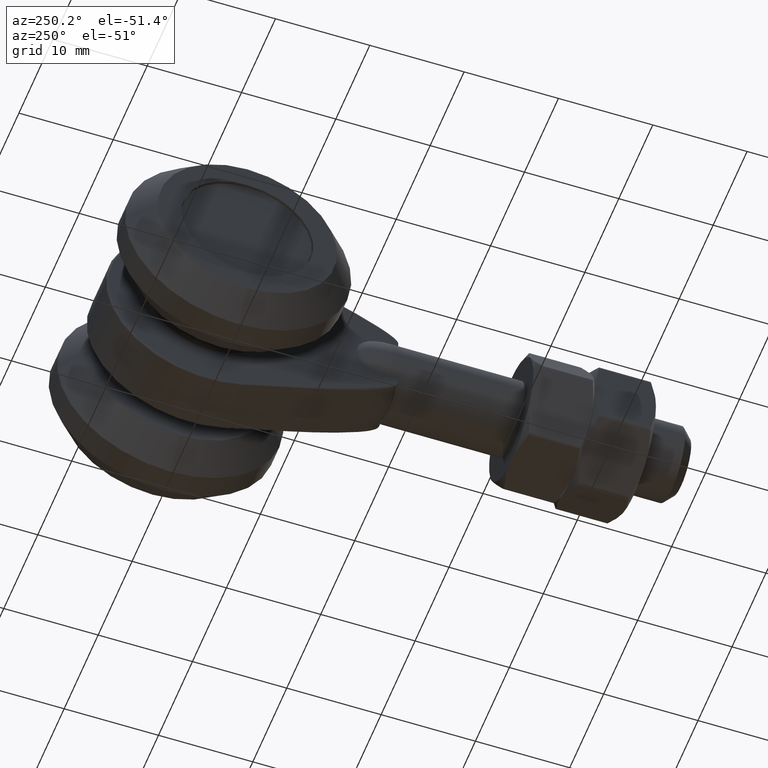
[diagram: clean part render]
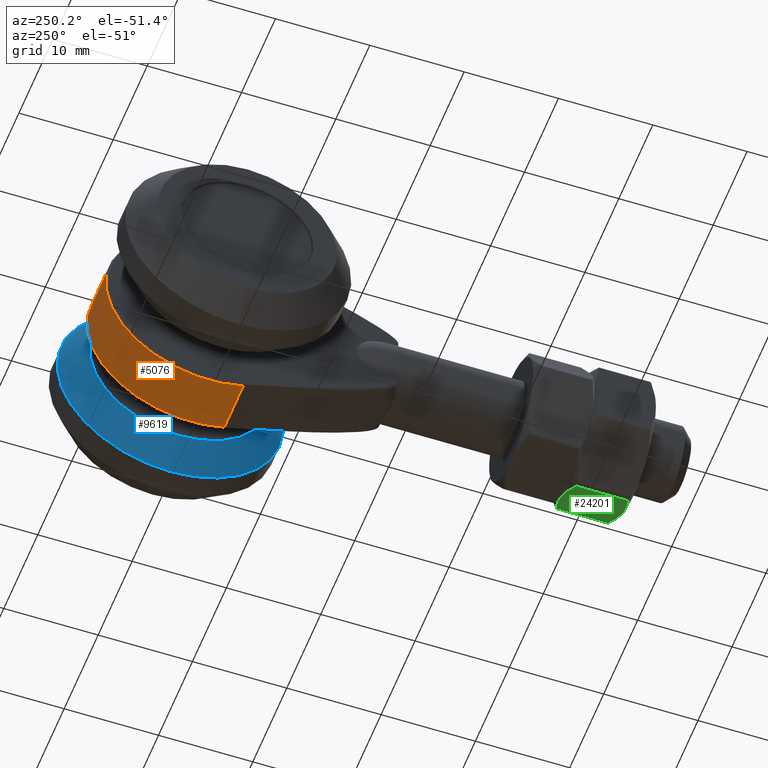
[diagram: same view with three faces highlighted in distinct colors, each labeled with its STEP entity id]
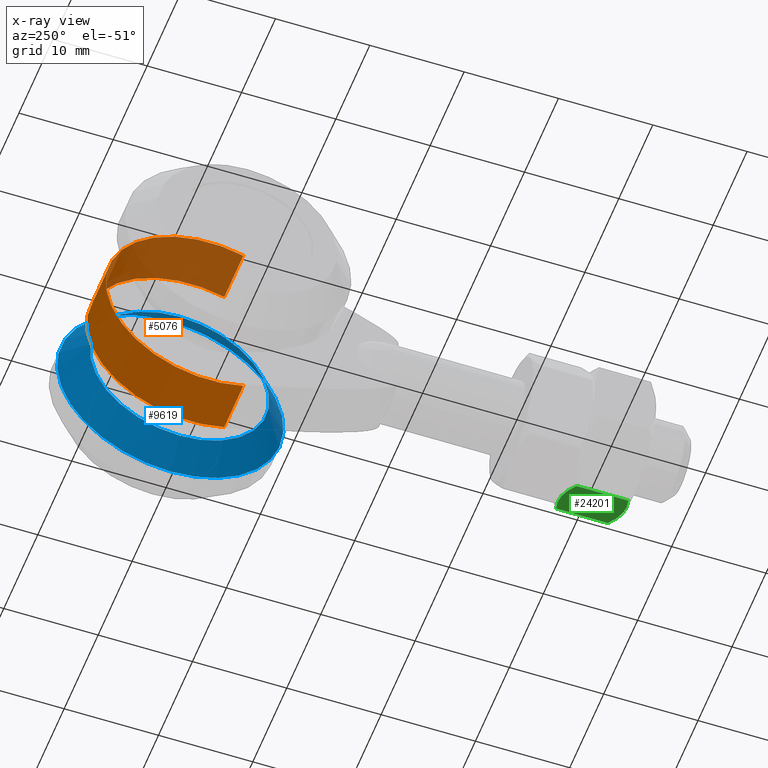
[diagram: x-ray of the same camera — body ghosted, the three highlighted faces saturated]
A machine part, auxiliary view with three faces highlighted in distinct colors.
The next image is the same camera in x-ray (body ghosted, the three faces saturated) — at least one of them is partly hidden behind the body in this view.
Their STEP definitions:

[orange] entity #5076 — the highlighted cylindrical surface (partial cylindrical patch) has radius 11 mm, axis along (-1, -0, -0).
#1078 = LINE ( 'NONE', #7791, #14157 ) ;
#1660 = EDGE_CURVE ( 'NONE', #17442, #22215, #20754, .T. ) ;
#3930 = CARTESIAN_POINT ( 'NONE',  ( -2.799999999999999378, 16.42029344312601324, -10.40123555000429789 ) ) ;
#5076 = ADVANCED_FACE ( 'NONE', ( #11058 ), #8064, .T. ) ;
#7791 = CARTESIAN_POINT ( 'NONE',  ( 3.000000000000000000, 16.42029344312602390, 10.40123555000430855 ) ) ;
#8064 = CYLINDRICAL_SURFACE ( 'NONE', #17099, 11.00000000000000711 ) ;
#9176 = AXIS2_PLACEMENT_3D ( 'NONE', #24706, #11811, #20109 ) ;
#9262 = CARTESIAN_POINT ( 'NONE',  ( 3.000000000000000000, 16.42029344312601324, -10.40123555000429789 ) ) ;
#11058 = FACE_OUTER_BOUND ( 'NONE', #24444, .T. ) ;
#11276 = ORIENTED_EDGE ( 'NONE', *, *, #27821, .T. ) ;
#11811 = DIRECTION ( 'NONE',  ( 1.000000000000000000, 0.000000000000000000, 0.000000000000000000 ) ) ;
#13003 = ORIENTED_EDGE ( 'NONE', *, *, #17133, .F. ) ;
#14157 = VECTOR ( 'NONE', #20474, 1000.000000000000000 ) ;
#14753 = VERTEX_POINT ( 'NONE', #3930 ) ;
#15554 = DIRECTION ( 'NONE',  ( 0.000000000000000000, 0.000000000000000000, 1.000000000000000000 ) ) ;
#16537 = ORIENTED_EDGE ( 'NONE', *, *, #18323, .T. ) ;
#16606 = CARTESIAN_POINT ( 'NONE',  ( 2.799999999999999822, 20.00000000000000355, -8.948584441246368620E-15 ) ) ;
#17099 = AXIS2_PLACEMENT_3D ( 'NONE', #22318, #26300, #15554 ) ;
#17133 = EDGE_CURVE ( 'NONE', #17442, #24518, #1078, .T. ) ;
#17442 = VERTEX_POINT ( 'NONE', #24756 ) ;
#18323 = EDGE_CURVE ( 'NONE', #22215, #14753, #18870, .T. ) ;
#18858 = DIRECTION ( 'NONE',  ( 0.000000000000000000, 0.000000000000000000, -1.000000000000000000 ) ) ;
#18870 = LINE ( 'NONE', #9262, #19870 ) ;
#19870 = VECTOR ( 'NONE', #20338, 1000.000000000000000 ) ;
#20109 = DIRECTION ( 'NONE',  ( 0.000000000000000000, 0.000000000000000000, -1.000000000000000000 ) ) ;
#20338 = DIRECTION ( 'NONE',  ( -1.000000000000000000, -0.000000000000000000, -0.000000000000000000 ) ) ;
#20474 = DIRECTION ( 'NONE',  ( -1.000000000000000000, -0.000000000000000000, -0.000000000000000000 ) ) ;
#20754 = CIRCLE ( 'NONE', #26837, 11.00000000000000711 ) ;
#21151 = CARTESIAN_POINT ( 'NONE',  ( 2.799999999999999822, 16.42029344312601324, -10.40123555000429789 ) ) ;
#22215 = VERTEX_POINT ( 'NONE', #21151 ) ;
#22318 = CARTESIAN_POINT ( 'NONE',  ( 3.000000000000000000, 20.00000000000000355, -8.948584441246368620E-15 ) ) ;
#23940 = CARTESIAN_POINT ( 'NONE',  ( -2.799999999999999378, 16.42029344312602390, 10.40123555000430855 ) ) ;
#24444 = EDGE_LOOP ( 'NONE', ( #13003, #27386, #16537, #11276 ) ) ;
#24518 = VERTEX_POINT ( 'NONE', #23940 ) ;
#24706 = CARTESIAN_POINT ( 'NONE',  ( -2.799999999999999378, 20.00000000000000355, -8.948584441246368620E-15 ) ) ;
#24756 = CARTESIAN_POINT ( 'NONE',  ( 2.799999999999999822, 16.42029344312602390, 10.40123555000430855 ) ) ;
#26022 = CIRCLE ( 'NONE', #9176, 11.00000000000000711 ) ;
#26300 = DIRECTION ( 'NONE',  ( -1.000000000000000000, -0.000000000000000000, -0.000000000000000000 ) ) ;
#26837 = AXIS2_PLACEMENT_3D ( 'NONE', #16606, #27355, #18858 ) ;
#27355 = DIRECTION ( 'NONE',  ( -1.000000000000000000, -0.000000000000000000, -0.000000000000000000 ) ) ;
#27386 = ORIENTED_EDGE ( 'NONE', *, *, #1660, .T. ) ;
#27821 = EDGE_CURVE ( 'NONE', #14753, #24518, #26022, .T. ) ;

[blue] entity #9619 — the highlighted conical surface has half-angle 42.274 deg.
#98 = DIRECTION ( 'NONE',  ( 1.000000000000000000, -0.000000000000000000, -0.000000000000000000 ) ) ;
#182 = FACE_OUTER_BOUND ( 'NONE', #22405, .T. ) ;
#2255 = DIRECTION ( 'NONE',  ( 0.000000000000000000, 0.000000000000000000, -1.000000000000000000 ) ) ;
#4460 = VERTEX_POINT ( 'NONE', #23102 ) ;
#5230 = CONICAL_SURFACE ( 'NONE', #20370, 11.99999999999999645, 0.7378150601204660486 ) ;
#5914 = FACE_BOUND ( 'NONE', #19713, .T. ) ;
#8212 = ORIENTED_EDGE ( 'NONE', *, *, #21008, .T. ) ;
#9619 = ADVANCED_FACE ( 'NONE', ( #5914, #182 ), #5230, .T. ) ;
#12960 = ORIENTED_EDGE ( 'NONE', *, *, #21123, .F. ) ;
#15757 = CIRCLE ( 'NONE', #22350, 11.99999999999999645 ) ;
#18983 = CARTESIAN_POINT ( 'NONE',  ( 6.000000000000000888, 20.00000000000000355, 0.000000000000000000 ) ) ;
#19081 = DIRECTION ( 'NONE',  ( 1.000000000000000000, -0.000000000000000000, -0.000000000000000000 ) ) ;
#19352 = DIRECTION ( 'NONE',  ( 0.000000000000000000, 0.000000000000000000, -1.000000000000000000 ) ) ;
#19482 = AXIS2_PLACEMENT_3D ( 'NONE', #18983, #19081, #23033 ) ;
#19713 = EDGE_LOOP ( 'NONE', ( #8212 ) ) ;
#20370 = AXIS2_PLACEMENT_3D ( 'NONE', #27638, #20859, #19352 ) ;
#20859 = DIRECTION ( 'NONE',  ( 1.000000000000000000, -0.000000000000000000, -0.000000000000000000 ) ) ;
#21008 = EDGE_CURVE ( 'NONE', #4460, #4460, #24900, .T. ) ;
#21123 = EDGE_CURVE ( 'NONE', #26955, #26955, #15757, .T. ) ;
#21594 = CARTESIAN_POINT ( 'NONE',  ( 8.749999999999998224, 20.00000000000000355, -11.99999999999999645 ) ) ;
#22350 = AXIS2_PLACEMENT_3D ( 'NONE', #24253, #98, #2255 ) ;
#22405 = EDGE_LOOP ( 'NONE', ( #12960 ) ) ;
#23033 = DIRECTION ( 'NONE',  ( 0.000000000000000000, 0.000000000000000000, -1.000000000000000000 ) ) ;
#23102 = CARTESIAN_POINT ( 'NONE',  ( 6.000000000000000888, 20.00000000000000355, -9.499999999999994671 ) ) ;
#24253 = CARTESIAN_POINT ( 'NONE',  ( 8.749999999999998224, 20.00000000000000355, 0.000000000000000000 ) ) ;
#24900 = CIRCLE ( 'NONE', #19482, 9.499999999999994671 ) ;
#26955 = VERTEX_POINT ( 'NONE', #21594 ) ;
#27638 = CARTESIAN_POINT ( 'NONE',  ( 8.749999999999998224, 20.00000000000000355, 0.000000000000000000 ) ) ;

[green] entity #24201 — the highlighted planar face has unit normal (-0.5, 0, 0.866).
#266 = CARTESIAN_POINT ( 'NONE',  ( 2.902884496152197791, -2.902718077616393000, 6.499999999999998224 ) ) ;
#724 = EDGE_CURVE ( 'NONE', #6427, #5032, #23557, .T. ) ;
#1257 = DIRECTION ( 'NONE',  ( -0.000000000000000000, 1.000000000000000000, -0.000000000000000000 ) ) ;
#2506 = CARTESIAN_POINT ( 'NONE',  ( 1.176513073733645998, -3.202698312935164271, 6.499999999999998224 ) ) ;
#2657 = CARTESIAN_POINT ( 'NONE',  ( -0.5843172141143634368, -3.250000000000000444, 6.499999999999998224 ) ) ;
#3019 = CARTESIAN_POINT ( 'NONE',  ( -1.165154007745679232, 3.203824239726178913, 6.499999999999998224 ) ) ;
#5032 = VERTEX_POINT ( 'NONE', #26030 ) ;
#5129 = CARTESIAN_POINT ( 'NONE',  ( 3.464101615137759271, 3.250000000000000000, 6.499999999999998224 ) ) ;
#5513 = VERTEX_POINT ( 'NONE', #6142 ) ;
#6142 = CARTESIAN_POINT ( 'NONE',  ( 0.000000000000000000, 3.250000000000000000, 6.499999999999998224 ) ) ;
#6427 = VERTEX_POINT ( 'NONE', #22182 ) ;
#6897 = CARTESIAN_POINT ( 'NONE',  ( -3.464101615138760693, -2.750326475674608417, 6.499999999999998224 ) ) ;
#7545 = ORIENTED_EDGE ( 'NONE', *, *, #22551, .T. ) ;
#7816 = B_SPLINE_CURVE_WITH_KNOTS ( 'NONE', 3,
 ( #12306, #20795, #7920, #24923, #27109, #10068 ),
 .UNSPECIFIED., .F., .F.,
 ( 4, 2, 4 ),
 ( 0.003050666260287162972, 0.004795283856735839401, 0.006539901453184517564 ),
 .UNSPECIFIED. ) ;
#7920 = CARTESIAN_POINT ( 'NONE',  ( 2.334407987368118942, 3.028397719986344327, 6.499999999999999112 ) ) ;
#8031 = LINE ( 'NONE', #11805, #8363 ) ;
#8363 = VECTOR ( 'NONE', #26884, 1000.000000000000000 ) ;
#8724 = CARTESIAN_POINT ( 'NONE',  ( 0.5843306495695039793, -3.249999999999999556, 6.499999999999998224 ) ) ;
#9137 = CARTESIAN_POINT ( 'NONE',  ( 0.000000000000000000, 3.250000000000000000, 6.499999999999998224 ) ) ;
#9143 = CARTESIAN_POINT ( 'NONE',  ( 3.464101615137759271, 2.750326475674881088, 6.499999999999998224 ) ) ;
#9229 = CARTESIAN_POINT ( 'NONE',  ( -3.752776749732568806, 3.250000000000000000, 6.499999999999998224 ) ) ;
#10068 = CARTESIAN_POINT ( 'NONE',  ( 0.000000000000000000, 3.250000000000000000, 6.499999999999998224 ) ) ;
#10150 = B_SPLINE_CURVE_WITH_KNOTS ( 'NONE', 3,
 ( #9137, #15690, #3019, #11639, #22176, #13423 ),
 .UNSPECIFIED., .F., .F.,
 ( 4, 2, 4 ),
 ( 0.006539901453184517564, 0.008284478935818398102, 0.01002905641845227777 ),
 .UNSPECIFIED. ) ;
#11033 = AXIS2_PLACEMENT_3D ( 'NONE', #9229, #11366, #15687 ) ;
#11205 = EDGE_CURVE ( 'NONE', #5032, #14100, #11214, .T. ) ;
#11214 = LINE ( 'NONE', #5129, #26703 ) ;
#11366 = DIRECTION ( 'NONE',  ( 0.000000000000000000, 0.000000000000000000, -1.000000000000000000 ) ) ;
#11578 = VERTEX_POINT ( 'NONE', #12659 ) ;
#11639 = CARTESIAN_POINT ( 'NONE',  ( -2.320763838972456305, 3.031023087752014344, 6.499999999999996447 ) ) ;
#11805 = CARTESIAN_POINT ( 'NONE',  ( -3.464101615137753942, 3.250000000000000000, 6.499999999999998224 ) ) ;
#12306 = CARTESIAN_POINT ( 'NONE',  ( 3.464101615137759271, 2.750326475674881088, 6.499999999999998224 ) ) ;
#12659 = CARTESIAN_POINT ( 'NONE',  ( -3.464101615138760693, 2.750326475674608417, 6.499999999999998224 ) ) ;
#13007 = EDGE_CURVE ( 'NONE', #5513, #11578, #10150, .T. ) ;
#13281 = CARTESIAN_POINT ( 'NONE',  ( 0.000000000000000000, -3.250000000000000000, 6.499999999999998224 ) ) ;
#13303 = ORIENTED_EDGE ( 'NONE', *, *, #724, .T. ) ;
#13423 = CARTESIAN_POINT ( 'NONE',  ( -3.464101615138760693, 2.750326475674608417, 6.499999999999998224 ) ) ;
#14100 = VERTEX_POINT ( 'NONE', #9143 ) ;
#15687 = DIRECTION ( 'NONE',  ( -1.000000000000000000, 0.000000000000000000, -0.000000000000000000 ) ) ;
#15690 = CARTESIAN_POINT ( 'NONE',  ( -0.5843172141143634368, 3.249999999999999556, 6.499999999999998224 ) ) ;
#15692 = CARTESIAN_POINT ( 'NONE',  ( -2.320763838972455417, -3.031023087752014344, 6.499999999999998224 ) ) ;
#17595 = CARTESIAN_POINT ( 'NONE',  ( -2.898327047151624480, -2.903955596805491979, 6.499999999999998224 ) ) ;
#17734 = FACE_OUTER_BOUND ( 'NONE', #23620, .T. ) ;
#19129 = EDGE_CURVE ( 'NONE', #22774, #6427, #26413, .T. ) ;
#19471 = CARTESIAN_POINT ( 'NONE',  ( -3.464101615138760693, -2.750326475674608417, 6.499999999999998224 ) ) ;
#19938 = CARTESIAN_POINT ( 'NONE',  ( 0.000000000000000000, -3.250000000000000000, 6.499999999999998224 ) ) ;
#20230 = ORIENTED_EDGE ( 'NONE', *, *, #19129, .T. ) ;
#20795 = CARTESIAN_POINT ( 'NONE',  ( 2.902884496152197347, 2.902718077616393444, 6.499999999999998224 ) ) ;
#21895 = CARTESIAN_POINT ( 'NONE',  ( -1.165154007745677456, -3.203824239726178469, 6.499999999999996447 ) ) ;
#22088 = PLANE ( 'NONE',  #11033 ) ;
#22176 = CARTESIAN_POINT ( 'NONE',  ( -2.898327047151625813, 2.903955596805492423, 6.499999999999998224 ) ) ;
#22182 = CARTESIAN_POINT ( 'NONE',  ( 0.000000000000000000, -3.250000000000000000, 6.499999999999998224 ) ) ;
#22551 = EDGE_CURVE ( 'NONE', #11578, #22774, #8031, .T. ) ;
#22774 = VERTEX_POINT ( 'NONE', #19471 ) ;
#22998 = ORIENTED_EDGE ( 'NONE', *, *, #11205, .T. ) ;
#23557 = B_SPLINE_CURVE_WITH_KNOTS ( 'NONE', 3,
 ( #13281, #8724, #2506, #23927, #266, #23658 ),
 .UNSPECIFIED., .F., .F.,
 ( 4, 2, 4 ),
 ( 0.01049192114530182046, 0.01224101035202044066, 0.01399009955873906086 ),
 .UNSPECIFIED. ) ;
#23620 = EDGE_LOOP ( 'NONE', ( #13303, #22998, #25440, #24573, #7545, #20230 ) ) ;
#23658 = CARTESIAN_POINT ( 'NONE',  ( 3.464101615137759271, -2.750326475674881088, 6.499999999999998224 ) ) ;
#23927 = CARTESIAN_POINT ( 'NONE',  ( 2.334407987368120274, -3.028397719986342995, 6.499999999999996447 ) ) ;
#24201 = ADVANCED_FACE ( 'NONE', ( #17734 ), #22088, .F. ) ;
#24573 = ORIENTED_EDGE ( 'NONE', *, *, #13007, .T. ) ;
#24923 = CARTESIAN_POINT ( 'NONE',  ( 1.176513073733644887, 3.202698312935164271, 6.499999999999995559 ) ) ;
#25224 = EDGE_CURVE ( 'NONE', #14100, #5513, #7816, .T. ) ;
#25440 = ORIENTED_EDGE ( 'NONE', *, *, #25224, .T. ) ;
#26030 = CARTESIAN_POINT ( 'NONE',  ( 3.464101615137759271, -2.750326475674881088, 6.499999999999998224 ) ) ;
#26413 = B_SPLINE_CURVE_WITH_KNOTS ( 'NONE', 3,
 ( #6897, #17595, #15692, #21895, #2657, #19938 ),
 .UNSPECIFIED., .F., .F.,
 ( 4, 2, 4 ),
 ( 0.006993823165124734773, 0.008742872155213278484, 0.01049192114530182046 ),
 .UNSPECIFIED. ) ;
#26703 = VECTOR ( 'NONE', #1257, 1000.000000000000000 ) ;
#26884 = DIRECTION ( 'NONE',  ( 0.000000000000000000, -1.000000000000000000, 0.000000000000000000 ) ) ;
#27109 = CARTESIAN_POINT ( 'NONE',  ( 0.5843306495695038683, 3.249999999999999556, 6.499999999999997335 ) ) ;